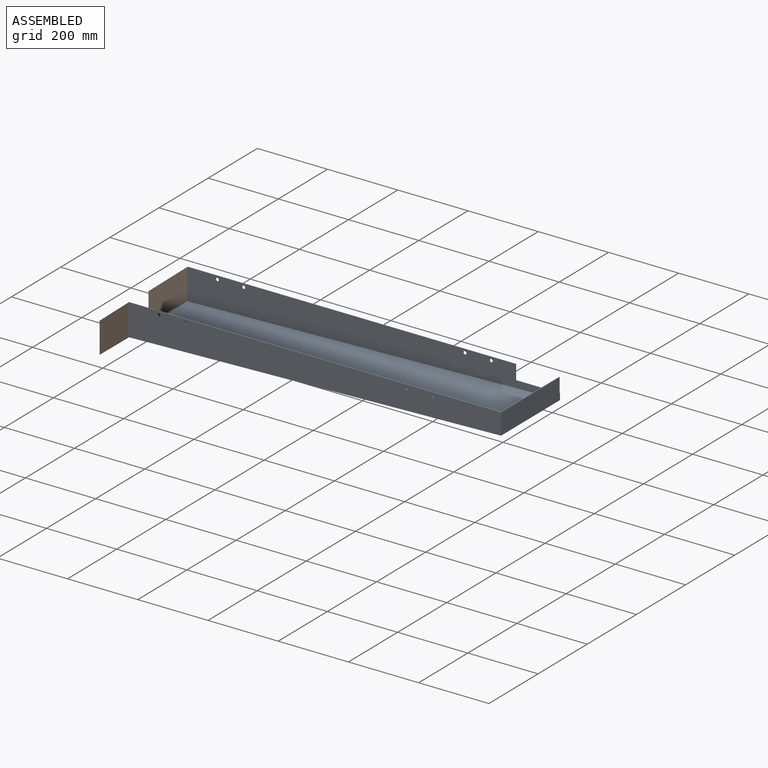
[diagram: assembled view]
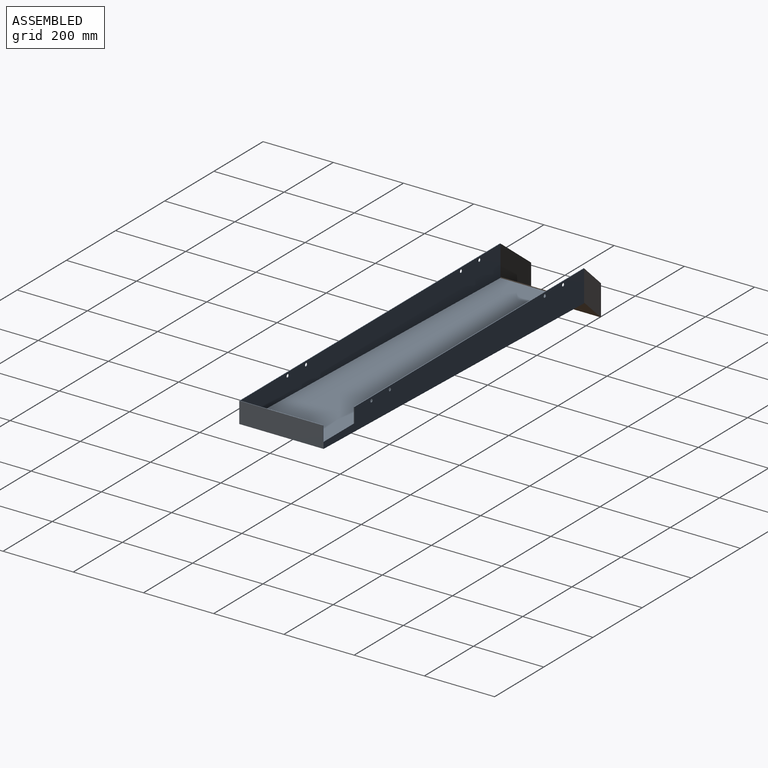
[diagram: assembled view, second angle]
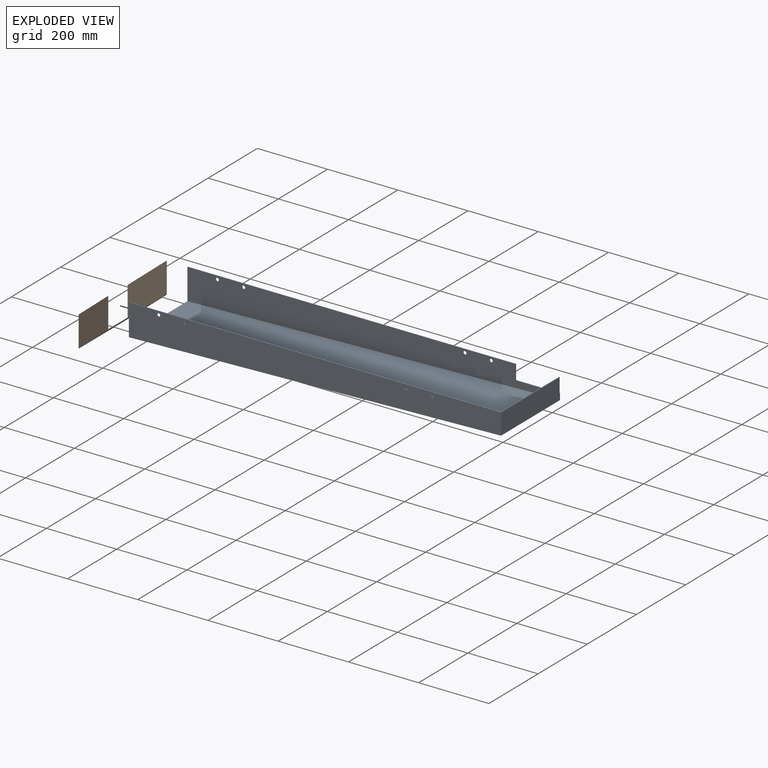
[diagram: exploded view]
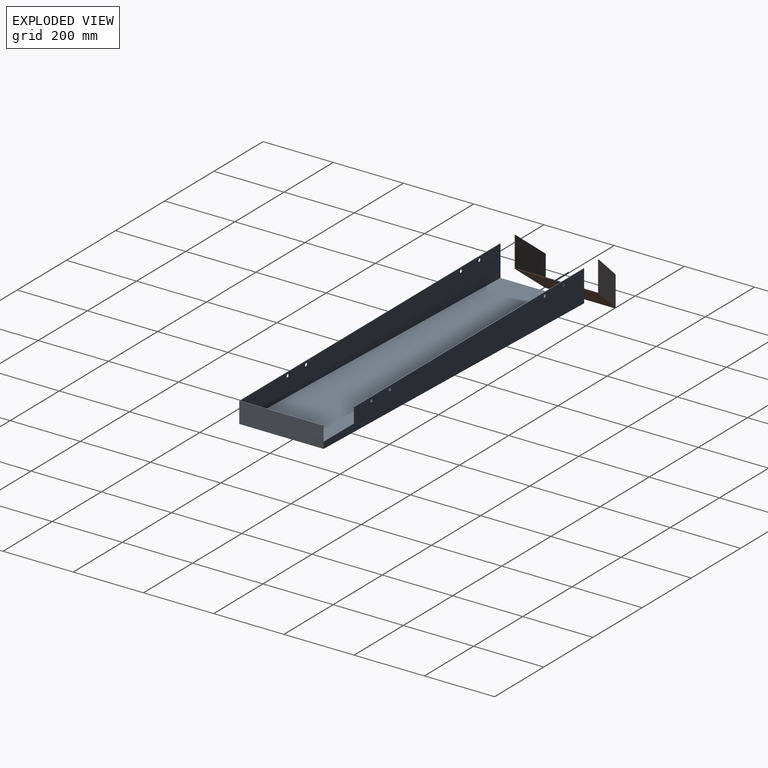
[diagram: exploded view, second angle]
ASSEMBLY  parts=2 mates=2
PART A: 24 faces, bbox 1060x240x90 mm
  f0: plane 935x1.6mm, normal (0,0,1), area 1496mm2, adj f2,f6,f10,f13
  f1: plane 1060x238.4mm, normal (0,0,1), area 2074.9mm2, adj f2,f4,f5,f8,f9,f15
  f2: plane 240x90mm, normal (-1,0,0), area 666.9mm2, adj f0,f1,f3,f5,f6,f9,f10,f12
  f3: plane 1060x240mm, normal (0.03,0,-1), area 254501.9mm2, adj f2,f4,f5,f6
  f4: plane 240x60mm, normal (1,0,0), area 14333.2mm2, adj f1,f3,f5,f6,f14,f15
  f5: plane 1060x90mm, normal (0,-1,0), area 79245.5mm2, adj f1,f2,f3,f4,f20,f21,f22,f23
  f6: plane 1060x90mm, normal (0,1,0), area 74026.3mm2, adj f0,f2,f3,f4,f13,f14,f16,f17
  f7: plane 1056.8x236.8mm, normal (-0.03,0,1), area 250350.4mm2, adj f8,f9,f10,f11
  f8: plane 236.8x58.44mm, normal (-1,0,0), area 13839.7mm2, adj f1,f7,f9,f10,f15
  f9: plane 1058.4x88.4mm, normal (0,1,0), area 77455.4mm2, adj f1,f2,f7,f8,f11,f12,f20,f21
  f10: plane 1058.4x88.4mm, normal (0,-1,0), area 72303mm2, adj f0,f2,f7,f8,f11,f12,f13,f14
  f11: plane 236.8x0.05mm, normal (-1,0,0), area 10.9mm2, adj f7,f9,f10,f12
  f12: plane 236.8x1.6mm, normal (0,0,1), area 378.9mm2, adj f2,f9,f10,f11
  f13: plane 41.75x1.6mm, normal (1,0,0), area 66.8mm2, adj f0,f6,f10,f14
  f14: plane 125x1.6mm, normal (0,0,1), area 200mm2, adj f4,f6,f10,f13,f15
  f15: plane 41.75x1.6mm, normal (0,1,0), area 66.8mm2, adj f1,f4,f8,f14
  f16: cylinder r=4.5mm len=9mm, axis (0,-1,0), area 45.2mm2, adj f6,f10
  f17: cylinder r=4.5mm len=9mm, axis (0,-1,0), area 45.2mm2, adj f6,f10
  f18: cylinder r=4.5mm len=9mm, axis (0,-1,0), area 45.2mm2, adj f6,f10
  f19: cylinder r=4.5mm len=9mm, axis (0,-1,0), area 45.2mm2, adj f6,f10
  f20: cylinder r=4.5mm len=9mm, axis (0,-1,0), area 45.2mm2, adj f5,f9
  f21: cylinder r=4.5mm len=9mm, axis (0,-1,0), area 45.2mm2, adj f5,f9
  f22: cylinder r=4.5mm len=9mm, axis (0,-1,0), area 45.2mm2, adj f5,f9
  f23: cylinder r=4.5mm len=9mm, axis (0,-1,0), area 45.2mm2, adj f5,f9
PART B: 10 faces, bbox 96.8x168.7x239.4 mm
  f0: plane 96.8x80.75mm, normal (-0.64,-0.77,0), area 205.7mm2, adj f2,f5,f8,f9
  f1: plane 96.8x80.75mm, normal (-0.64,-0.77,0), area 205.7mm2, adj f3,f6,f8,f9
  f2: plane 168.75x96.8mm, normal (-0.2,0,0.98), area 8687.1mm2, adj f0,f4,f8,f9
  f3: plane 168.75x96.8mm, normal (-0.2,0,-0.98), area 8687.1mm2, adj f1,f4,f8,f9
  f4: plane 239.36x96.8mm, normal (0.64,0.77,0), area 27732.3mm2, adj f2,f3,f8,f9
  f5: plane 166.66x96.8mm, normal (0.2,0,-0.98), area 8481.4mm2, adj f0,f7,f8,f9
  f6: plane 166.66x96.8mm, normal (0.2,0,0.98), area 8481.4mm2, adj f1,f7,f8,f9
  f7: plane 236.1x96.8mm, normal (-0.64,-0.77,0), area 27320.9mm2, adj f5,f6,f8,f9
  f8: plane 200.64x88mm, normal (-1,0,0), area 698.4mm2, adj f0,f1,f2,f3,f4,f5,f6,f7
  f9: plane 239.36x88mm, normal (1,0,0), area 779.1mm2, adj f0,f1,f2,f3,f4,f5,f6,f7
PLACE A t=(-198.82,44.61,25.68)mm
PLACE B rot(axis=(-1,0,0),90deg) t=(-827.22,-75.65,-144.41)mm
MATE parallel A.f2 <-> B.f9  axis (-1,0,0) through (-728.82,-75.39,-44.43)mm
MATE planar A.f2 <-> B.f9  axis (-1,0,0) through (-728.82,-75.39,-44.43)mm
